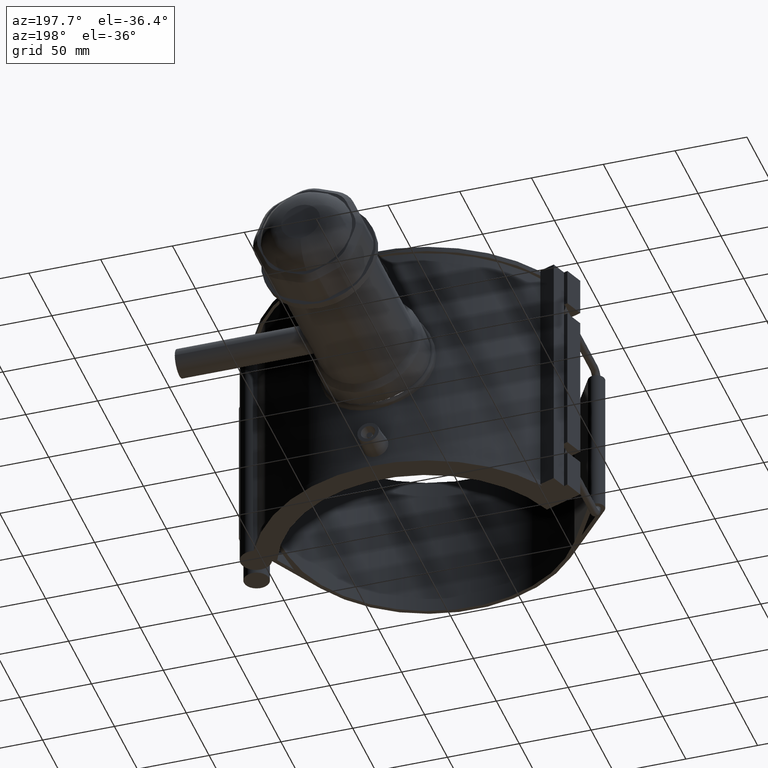
[diagram: clean part render]
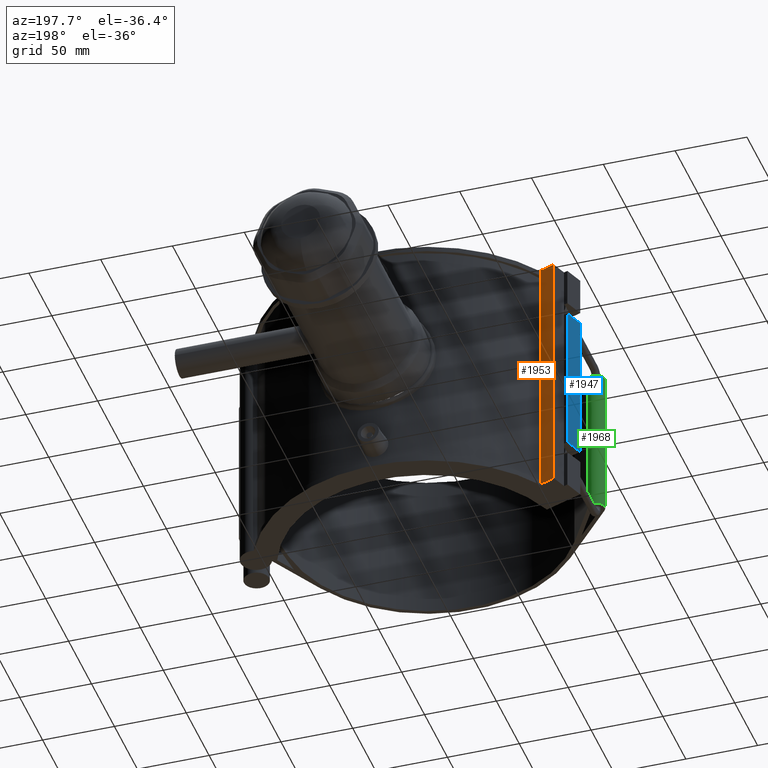
[diagram: same view with three faces highlighted in distinct colors, each labeled with its STEP entity id]
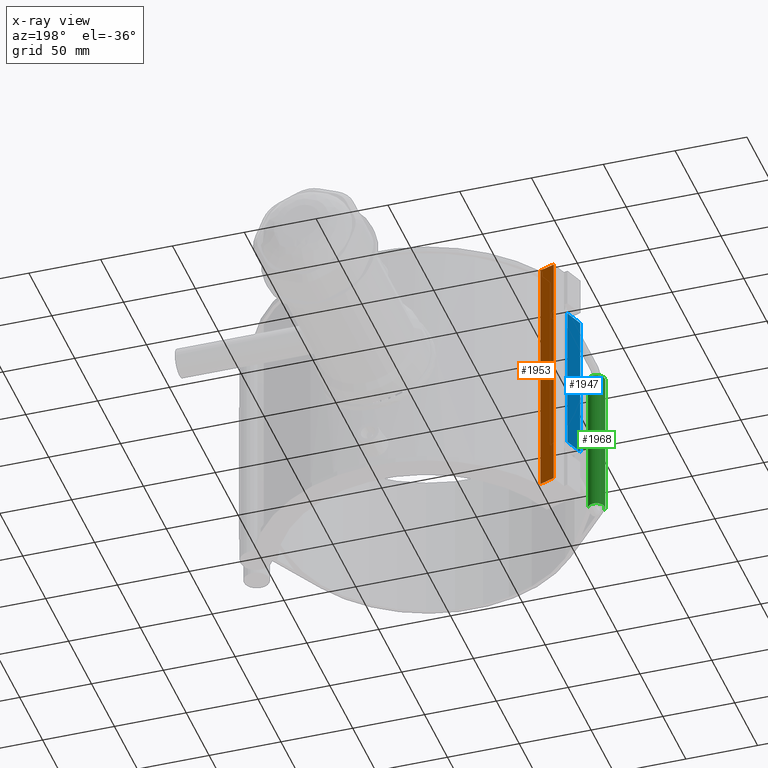
[diagram: x-ray of the same camera — body ghosted, the three highlighted faces saturated]
A machine part, auxiliary view with three faces highlighted in distinct colors.
The next image is the same camera in x-ray (body ghosted, the three faces saturated) — at least one of them is partly hidden behind the body in this view.
Their STEP definitions:

[orange] entity #1953 — the highlighted planar face has unit normal (0.342, 0.9397, 0).
#169=LINE('',#3499,#330);
#176=LINE('',#3513,#337);
#178=LINE('',#3516,#339);
#179=LINE('',#3517,#340);
#330=VECTOR('',#2628,176.);
#337=VECTOR('',#2641,176.);
#339=VECTOR('',#2645,11.2);
#340=VECTOR('',#2646,11.2);
#532=FACE_OUTER_BOUND('',#674,.T.);
#674=EDGE_LOOP('',(#1647,#1648,#1649,#1650));
#964=VERTEX_POINT('',#3496);
#965=VERTEX_POINT('',#3498);
#968=VERTEX_POINT('',#3510);
#969=VERTEX_POINT('',#3512);
#1205=EDGE_CURVE('',#964,#965,#169,.T.);
#1212=EDGE_CURVE('',#969,#968,#176,.T.);
#1214=EDGE_CURVE('',#968,#965,#178,.T.);
#1215=EDGE_CURVE('',#969,#964,#179,.T.);
#1647=ORIENTED_EDGE('',*,*,#1214,.T.);
#1648=ORIENTED_EDGE('',*,*,#1205,.F.);
#1649=ORIENTED_EDGE('',*,*,#1215,.F.);
#1650=ORIENTED_EDGE('',*,*,#1212,.T.);
#1853=PLANE('',#2143);
#1953=ADVANCED_FACE('',(#532),#1853,.T.);
#2143=AXIS2_PLACEMENT_3D('',#3515,#2643,#2644);
#2628=DIRECTION('',(0.,0.,1.));
#2641=DIRECTION('',(0.,0.,1.));
#2643=DIRECTION('center_axis',(0.342020143325667,0.939692620785909,0.));
#2644=DIRECTION('ref_axis',(-0.939692620785909,0.342020143325668,0.));
#2645=DIRECTION('',(0.939692620785909,-0.342020143325667,0.));
#2646=DIRECTION('',(0.939692620785909,-0.342020143325667,0.));
#3496=CARTESIAN_POINT('',(-98.5060511577865,62.6705503829311,-88.));
#3498=CARTESIAN_POINT('',(-98.5060511577865,62.6705503829311,88.));
#3499=CARTESIAN_POINT('',(-98.5060511577865,62.6705503829311,-88.));
#3510=CARTESIAN_POINT('',(-109.030608510589,66.5011759881785,88.));
#3512=CARTESIAN_POINT('',(-109.030608510589,66.5011759881785,-88.));
#3513=CARTESIAN_POINT('',(-109.030608510589,66.5011759881785,-88.));
#3515=CARTESIAN_POINT('Origin',(-98.5060511577865,62.6705503829311,-88.));
#3516=CARTESIAN_POINT('',(-99.2747368321261,62.9503290878975,88.));
#3517=CARTESIAN_POINT('',(-109.030608510589,66.5011759881785,-88.));

[blue] entity #1947 — the highlighted planar face has unit normal (-0.9397, 0.342, 0).
#142=LINE('',#3436,#303);
#144=LINE('',#3446,#305);
#149=LINE('',#3460,#310);
#156=LINE('',#3472,#317);
#303=VECTOR('',#2565,106.);
#305=VECTOR('',#2579,14.);
#310=VECTOR('',#2594,14.);
#317=VECTOR('',#2607,106.);
#526=FACE_OUTER_BOUND('',#668,.T.);
#668=EDGE_LOOP('',(#1607,#1608,#1609,#1610));
#946=VERTEX_POINT('',#3433);
#947=VERTEX_POINT('',#3435);
#949=VERTEX_POINT('',#3445);
#953=VERTEX_POINT('',#3459);
#1173=EDGE_CURVE('',#947,#946,#142,.T.);
#1178=EDGE_CURVE('',#946,#949,#144,.T.);
#1185=EDGE_CURVE('',#953,#947,#149,.T.);
#1192=EDGE_CURVE('',#953,#949,#156,.T.);
#1607=ORIENTED_EDGE('',*,*,#1178,.T.);
#1608=ORIENTED_EDGE('',*,*,#1192,.F.);
#1609=ORIENTED_EDGE('',*,*,#1185,.T.);
#1610=ORIENTED_EDGE('',*,*,#1173,.T.);
#1847=PLANE('',#2137);
#1947=ADVANCED_FACE('',(#526),#1847,.T.);
#2137=AXIS2_PLACEMENT_3D('',#3475,#2611,#2612);
#2565=DIRECTION('',(0.,0.,1.));
#2579=DIRECTION('',(0.34202014332567,0.939692620785908,4.68386162474976E-31));
#2594=DIRECTION('',(-0.34202014332567,-0.939692620785908,-1.26341004351803E-31));
#2607=DIRECTION('',(0.,0.,1.));
#2611=DIRECTION('center_axis',(-0.939692620785908,0.34202014332567,0.));
#2612=DIRECTION('ref_axis',(-0.342020143325669,-0.939692620785908,0.));
#3433=CARTESIAN_POINT('',(-120.280655460596,43.7785783456856,53.));
#3435=CARTESIAN_POINT('',(-120.280655460596,43.7785783456856,-53.));
#3436=CARTESIAN_POINT('',(-120.280655460596,43.7785783456855,-88.));
#3445=CARTESIAN_POINT('',(-115.492373454037,56.9342750366883,53.));
#3446=CARTESIAN_POINT('',(-117.886514457316,50.3564266911869,53.));
#3459=CARTESIAN_POINT('',(-115.492373454037,56.9342750366883,-53.));
#3460=CARTESIAN_POINT('',(-117.886514457316,50.3564266911869,-53.));
#3472=CARTESIAN_POINT('',(-115.492373454037,56.9342750366882,-88.));
#3475=CARTESIAN_POINT('Origin',(-115.492373454037,56.9342750366882,-88.));

[green] entity #1968 — the highlighted cylindrical surface (edge-blend (fillet) strip) has radius 5.8 mm, axis along (0, 0, 1).
#192=LINE('',#3553,#353);
#193=LINE('',#3555,#354);
#353=VECTOR('',#2693,105.6);
#354=VECTOR('',#2696,105.6);
#440=CYLINDRICAL_SURFACE('',#2164,5.80000000000001);
#547=FACE_OUTER_BOUND('',#689,.T.);
#689=EDGE_LOOP('',(#1719,#1720,#1721,#1722));
#770=CIRCLE('',#2083,5.80000000000001);
#776=CIRCLE('',#2090,5.80000000000001);
#893=VERTEX_POINT('',#3287);
#894=VERTEX_POINT('',#3289);
#904=VERTEX_POINT('',#3311);
#905=VERTEX_POINT('',#3313);
#1107=EDGE_CURVE('',#893,#894,#770,.T.);
#1119=EDGE_CURVE('',#904,#905,#776,.T.);
#1234=EDGE_CURVE('',#893,#905,#192,.T.);
#1235=EDGE_CURVE('',#894,#904,#193,.T.);
#1719=ORIENTED_EDGE('',*,*,#1234,.T.);
#1720=ORIENTED_EDGE('',*,*,#1119,.F.);
#1721=ORIENTED_EDGE('',*,*,#1235,.F.);
#1722=ORIENTED_EDGE('',*,*,#1107,.F.);
#1968=ADVANCED_FACE('',(#547),#440,.T.);
#2083=AXIS2_PLACEMENT_3D('',#3290,#2449,#2450);
#2090=AXIS2_PLACEMENT_3D('',#3314,#2469,#2470);
#2164=AXIS2_PLACEMENT_3D('',#3559,#2702,#2703);
#2449=DIRECTION('center_axis',(0.,0.,-1.));
#2450=DIRECTION('ref_axis',(-1.,0.,0.));
#2469=DIRECTION('center_axis',(0.,0.,1.));
#2470=DIRECTION('ref_axis',(-1.,0.,0.));
#2693=DIRECTION('',(0.,0.,1.));
#2696=DIRECTION('',(0.,0.,1.));
#2702=DIRECTION('center_axis',(0.,0.,1.));
#2703=DIRECTION('ref_axis',(-1.,0.,0.));
#3287=CARTESIAN_POINT('',(-115.606064279003,-23.7944908506153,-52.8));
#3289=CARTESIAN_POINT('',(-106.235599464735,-17.033417134836,-52.8));
#3290=CARTESIAN_POINT('Origin',(-111.219512195122,-20.,-52.8));
#3311=CARTESIAN_POINT('',(-106.235599464735,-17.033417134836,52.8));
#3313=CARTESIAN_POINT('',(-115.606064279003,-23.7944908506153,52.8));
#3314=CARTESIAN_POINT('Origin',(-111.219512195122,-20.,52.8));
#3553=CARTESIAN_POINT('',(-115.606064279003,-23.7944908506153,0.));
#3555=CARTESIAN_POINT('',(-106.235599464735,-17.033417134836,0.));
#3559=CARTESIAN_POINT('Origin',(-111.219512195122,-20.,0.));